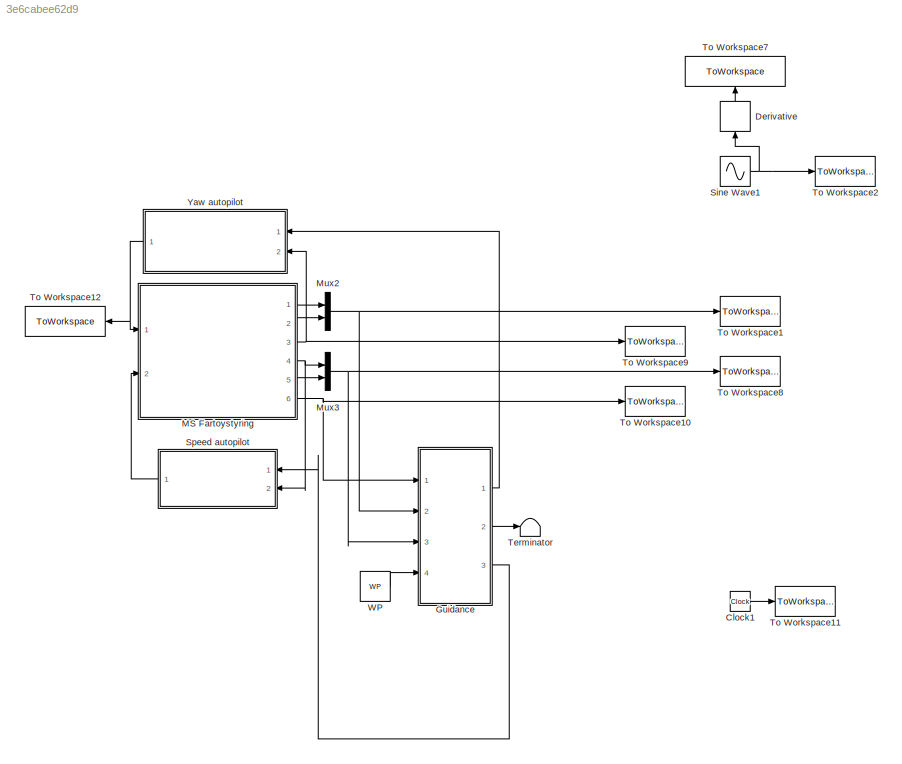
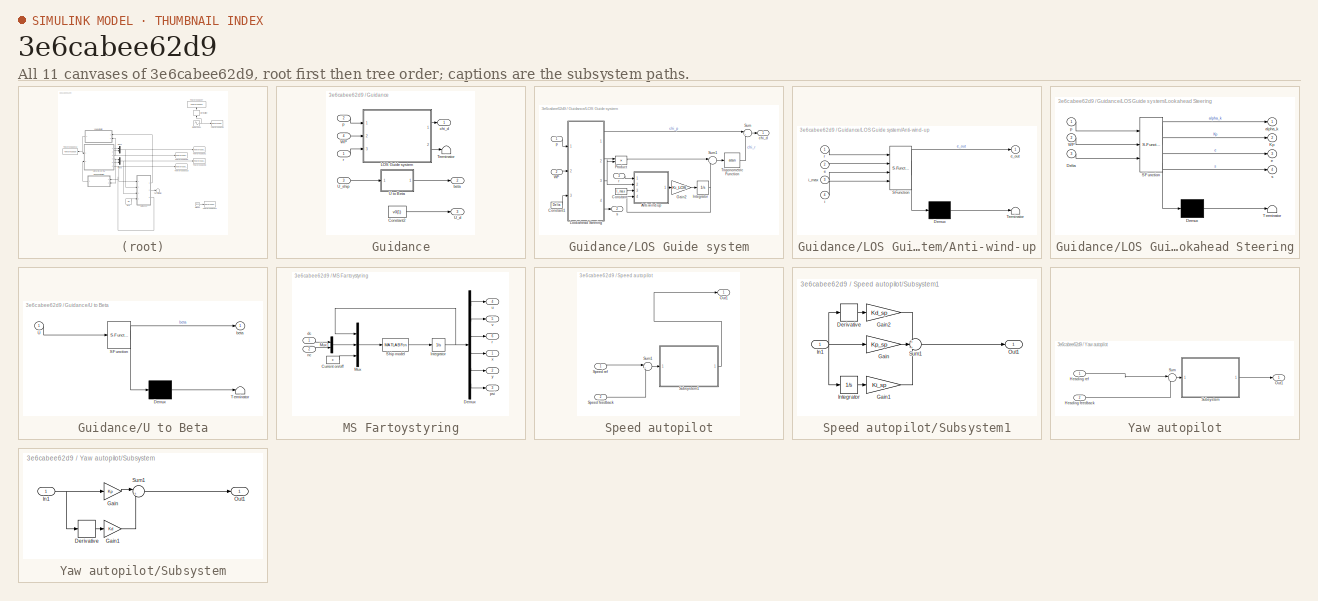
[diagram: thumbnail index - all 11 canvases of the model, root first then tree order]
MODEL slx_3e6cabee62d9
KIND model
CONFIG AbsTol = auto
CONFIG EnableMultiTasking = on
CONFIG FixedStep = auto
CONFIG MaxStep = auto
CONFIG MinStep = auto
CONFIG RelTol = 1e-3
CONFIG SampleTimeConstraint = Unconstrained
CONFIG Solver = ode45
CONFIG SolverName = ode45
CONFIG StartTime = tstart
CONFIG StopTime = tstop
BLOCK [Clock] Clock1
BLOCK [Derivative] Derivative
  Commented = on
BLOCK [SubSystem] Guidance
  Ports = [4, 3]
  RequestExecContextInheritance = off
BLOCK [Constant] Guidance/Constant2
  Value = v0(1)
BLOCK [SubSystem] Guidance/LOS Guide system
  Description = LOS
  Ports = [3, 2]
  RequestExecContextInheritance = off
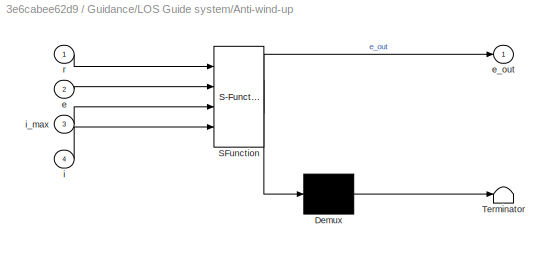
BLOCK [SubSystem] Guidance/LOS Guide system/Anti-wind-up
  ErrorFcn = Stateflow.Translate.translate
  PermitHierarchicalResolution = ExplicitOnly
  Ports = [4, 1]
  RequestExecContextInheritance = off
  SFBlockType = MATLAB Function
  TreatAsAtomicUnit = on
BLOCK [Demux] Guidance/LOS Guide system/Anti-wind-up/ Demux 
  Outputs = 1
  Ports = [1, 1]
BLOCK [S-Function] Guidance/LOS Guide system/Anti-wind-up/ SFunction 
  EnableBusSupport = on
  FunctionName = sf_sfun
  PortCounts = [4 2]
  Ports = [4, 2]
  SFcnIsStateOwnerBlock = off
  SFunctionDeploymentMode = off
  Tag = Stateflow S-Function MSFartoystyring_2_1 6
BLOCK [Terminator] Guidance/LOS Guide system/Anti-wind-up/ Terminator 
BLOCK [Inport] Guidance/LOS Guide system/Anti-wind-up/e
  IconDisplay = Port number
  Port = 2
BLOCK [Outport] Guidance/LOS Guide system/Anti-wind-up/e_out
  IconDisplay = Port number
BLOCK [Inport] Guidance/LOS Guide system/Anti-wind-up/i
  IconDisplay = Port number
  Port = 4
BLOCK [Inport] Guidance/LOS Guide system/Anti-wind-up/i_max
  IconDisplay = Port number
  Port = 3
BLOCK [Inport] Guidance/LOS Guide system/Anti-wind-up/r
  IconDisplay = Port number
BLOCK [Constant] Guidance/LOS Guide system/Constant
  Value = I_max
BLOCK [Constant] Guidance/LOS Guide system/Constant1
  Value = Delta
BLOCK [Gain] Guidance/LOS Guide system/Gain2
  Gain = Ki_LOS
  OutDataTypeStr = Inherit: Inherit via internal rule
  ParamDataTypeStr = Inherit: Inherit via internal rule
  SaturateOnIntegerOverflow = off
BLOCK [Integrator] Guidance/LOS Guide system/Integrator
  Ports = [1, 1]
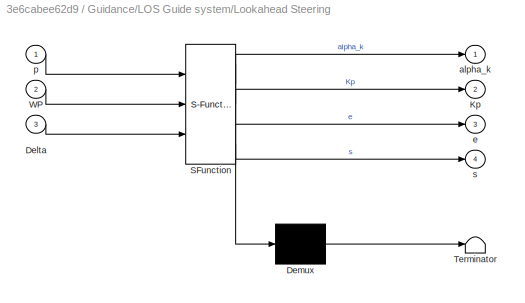
BLOCK [SubSystem] Guidance/LOS Guide system/Lookahead Steering
  ErrorFcn = Stateflow.Translate.translate
  PermitHierarchicalResolution = ExplicitOnly
  Ports = [3, 4]
  RequestExecContextInheritance = off
  SFBlockType = MATLAB Function
  TreatAsAtomicUnit = on
BLOCK [Demux] Guidance/LOS Guide system/Lookahead Steering/ Demux 
  Outputs = 1
  Ports = [1, 1]
BLOCK [S-Function] Guidance/LOS Guide system/Lookahead Steering/ SFunction 
  EnableBusSupport = on
  FunctionName = sf_sfun
  PortCounts = [3 5]
  Ports = [3, 5]
  SFcnIsStateOwnerBlock = off
  SFunctionDeploymentMode = off
  Tag = Stateflow S-Function MSFartoystyring_2_1 2
BLOCK [Terminator] Guidance/LOS Guide system/Lookahead Steering/ Terminator 
BLOCK [Inport] Guidance/LOS Guide system/Lookahead Steering/Delta
  IconDisplay = Port number
  Port = 3
BLOCK [Outport] Guidance/LOS Guide system/Lookahead Steering/Kp
  IconDisplay = Port number
  Port = 2
BLOCK [Inport] Guidance/LOS Guide system/Lookahead Steering/WP
  IconDisplay = Port number
  Port = 2
BLOCK [Outport] Guidance/LOS Guide system/Lookahead Steering/alpha_k
  IconDisplay = Port number
BLOCK [Outport] Guidance/LOS Guide system/Lookahead Steering/e
  IconDisplay = Port number
  Port = 3
BLOCK [Inport] Guidance/LOS Guide system/Lookahead Steering/p
  IconDisplay = Port number
BLOCK [Outport] Guidance/LOS Guide system/Lookahead Steering/s
  IconDisplay = Port number
  Port = 4
BLOCK [Product] Guidance/LOS Guide system/Product
  InputSameDT = off
  OutDataTypeStr = Inherit: Inherit via internal rule
  Ports = [2, 1]
  RndMeth = Floor
  SaturateOnIntegerOverflow = off
BLOCK [Sum] Guidance/LOS Guide system/Sum
  IconShape = round
  InputSameDT = off
  Inputs = |++
  OutDataTypeStr = Inherit: Inherit via internal rule
  Ports = [2, 1]
  SaturateOnIntegerOverflow = off
BLOCK [Sum] Guidance/LOS Guide system/Sum1
  IconShape = round
  InputSameDT = off
  Inputs = |--
  OutDataTypeStr = Inherit: Inherit via internal rule
  Ports = [2, 1]
  SaturateOnIntegerOverflow = off
BLOCK [Trigonometry] Guidance/LOS Guide system/Trigonometric Function
  Operator = atan
  Ports = [1, 1]
BLOCK [Inport] Guidance/LOS Guide system/WP
  IconDisplay = Port number
  Port = 2
BLOCK [Outport] Guidance/LOS Guide system/chi_d
  IconDisplay = Port number
BLOCK [Inport] Guidance/LOS Guide system/p
  IconDisplay = Port number
BLOCK [Inport] Guidance/LOS Guide system/r
  IconDisplay = Port number
  Port = 3
BLOCK [Outport] Guidance/LOS Guide system/s
  IconDisplay = Port number
  Port = 2
BLOCK [Terminator] Guidance/Terminator
BLOCK [SubSystem] Guidance/U to Beta
  ErrorFcn = Stateflow.Translate.translate
  PermitHierarchicalResolution = ExplicitOnly
  Ports = [1, 1]
  RequestExecContextInheritance = off
  SFBlockType = MATLAB Function
  TreatAsAtomicUnit = on
BLOCK [Demux] Guidance/U to Beta/ Demux 
  Outputs = 1
  Ports = [1, 1]
BLOCK [S-Function] Guidance/U to Beta/ SFunction 
  EnableBusSupport = on
  FunctionName = sf_sfun
  PortCounts = [1 2]
  Ports = [1, 2]
  SFcnIsStateOwnerBlock = off
  SFunctionDeploymentMode = off
  Tag = Stateflow S-Function MSFartoystyring_2_1 3
BLOCK [Terminator] Guidance/U to Beta/ Terminator 
BLOCK [Inport] Guidance/U to Beta/U
  IconDisplay = Port number
BLOCK [Outport] Guidance/U to Beta/beta
  IconDisplay = Port number
BLOCK [Outport] Guidance/U_d
  IconDisplay = Port number
  Port = 3
BLOCK [Inport] Guidance/U_ship
  IconDisplay = Port number
  Port = 3
BLOCK [Inport] Guidance/WP
  IconDisplay = Port number
  Port = 4
BLOCK [Outport] Guidance/beta
  IconDisplay = Port number
  Port = 2
BLOCK [Outport] Guidance/chi_d
  IconDisplay = Port number
BLOCK [Inport] Guidance/p
  IconDisplay = Port number
  Port = 2
BLOCK [Inport] Guidance/r
  IconDisplay = Port number
BLOCK [SubSystem] MS Fartoystyring
  Ports = [2, 6]
  RequestExecContextInheritance = off
BLOCK [Constant] MS Fartoystyring/Current on//off
  Value = c
BLOCK [Demux] MS Fartoystyring/Demux
  DisplayOption = bar
  Outputs = 6
  Ports = [1, 6]
BLOCK [Integrator] MS Fartoystyring/Integrator
  InitialCondition = [u0 v0 r0 x0 y0 psi0]'
  Ports = [1, 1]
BLOCK [Mux] MS Fartoystyring/Mux
  DisplayOption = bar
  Inputs = 3
  Ports = [3, 1]
BLOCK [Mux] MS Fartoystyring/Mux1
  DisplayOption = bar
  Inputs = 2
  Ports = [2, 1]
BLOCK [MATLABFcn] MS Fartoystyring/Ship model
  MATLABFcn = msfartoystyring(u(1:6), u(7:8), u(9))
  OutputDimensions = 6
  Ports = [1, 1]
BLOCK [Inport] MS Fartoystyring/dc
  IconDisplay = Port number
BLOCK [Inport] MS Fartoystyring/nc
  IconDisplay = Port number
  Port = 2
BLOCK [Outport] MS Fartoystyring/psi
  IconDisplay = Port number
  Port = 3
BLOCK [Outport] MS Fartoystyring/r
  IconDisplay = Port number
  Port = 6
BLOCK [Outport] MS Fartoystyring/u
  IconDisplay = Port number
  Port = 4
BLOCK [Outport] MS Fartoystyring/v
  IconDisplay = Port number
  Port = 5
BLOCK [Outport] MS Fartoystyring/x
  IconDisplay = Port number
BLOCK [Outport] MS Fartoystyring/y
  IconDisplay = Port number
  Port = 2
BLOCK [Mux] Mux2
  DisplayOption = bar
  Inputs = 2
  Ports = [2, 1]
BLOCK [Mux] Mux3
  DisplayOption = bar
  Inputs = 2
  Ports = [2, 1]
BLOCK [Sin] Sine Wave1
  Amplitude = 0.4
  Commented = on
  Frequency = 0.004
  Ports = [0, 1]
  SampleTime = 0
BLOCK [SubSystem] Speed autopilot
  Ports = [2, 1]
  RequestExecContextInheritance = off
BLOCK [Outport] Speed autopilot/Out1
  IconDisplay = Port number
BLOCK [Inport] Speed autopilot/Speed feedback
  IconDisplay = Port number
  Port = 2
BLOCK [Inport] Speed autopilot/Speed ref
  IconDisplay = Port number
BLOCK [SubSystem] Speed autopilot/Subsystem1
  Ports = [1, 1]
  RequestExecContextInheritance = off
BLOCK [Derivative] Speed autopilot/Subsystem1/Derivative
BLOCK [Gain] Speed autopilot/Subsystem1/Gain
  Gain = Kp_sp
  OutDataTypeStr = Inherit: Inherit via internal rule
  ParamDataTypeStr = Inherit: Inherit via internal rule
  SaturateOnIntegerOverflow = off
BLOCK [Gain] Speed autopilot/Subsystem1/Gain1
  Gain = Ki_sp
  OutDataTypeStr = Inherit: Inherit via internal rule
  ParamDataTypeStr = Inherit: Inherit via internal rule
  SaturateOnIntegerOverflow = off
BLOCK [Gain] Speed autopilot/Subsystem1/Gain2
  Gain = Kd_sp
  OutDataTypeStr = Inherit: Inherit via internal rule
  ParamDataTypeStr = Inherit: Inherit via internal rule
  SaturateOnIntegerOverflow = off
BLOCK [Inport] Speed autopilot/Subsystem1/In1
  IconDisplay = Port number
BLOCK [Integrator] Speed autopilot/Subsystem1/Integrator
  Ports = [1, 1]
BLOCK [Outport] Speed autopilot/Subsystem1/Out1
  IconDisplay = Port number
BLOCK [Sum] Speed autopilot/Subsystem1/Sum1
  IconShape = round
  InputSameDT = off
  Inputs = +|++
  OutDataTypeStr = Inherit: Inherit via internal rule
  Ports = [3, 1]
  SaturateOnIntegerOverflow = off
BLOCK [Sum] Speed autopilot/Sum1
  IconShape = round
  InputSameDT = off
  Inputs = |+-
  OutDataTypeStr = Inherit: Inherit via internal rule
  Ports = [2, 1]
  SaturateOnIntegerOverflow = off
BLOCK [Terminator] Terminator
BLOCK [ToWorkspace] To Workspace1
  MaxDataPoints = inf
  Ports = [1]
  SampleTime = tsamp
  VariableName = p
BLOCK [ToWorkspace] To Workspace10
  MaxDataPoints = inf
  Ports = [1]
  SampleTime = tsamp
  VariableName = r
BLOCK [ToWorkspace] To Workspace11
  MaxDataPoints = inf
  Ports = [1]
  SampleTime = tsamp
  VariableName = t
BLOCK [ToWorkspace] To Workspace12
  MaxDataPoints = inf
  Ports = [1]
  SampleTime = tsamp
  VariableName = rudder_input
BLOCK [ToWorkspace] To Workspace2
  Commented = on
  MaxDataPoints = inf
  Ports = [1]
  SampleTime = tsamp
  VariableName = yaw_ref
BLOCK [ToWorkspace] To Workspace7
  Commented = on
  MaxDataPoints = inf
  Ports = [1]
  SampleTime = tsamp
  VariableName = yaw_rate_ref
BLOCK [ToWorkspace] To Workspace8
  MaxDataPoints = inf
  Ports = [1]
  SampleTime = tsamp
  VariableName = v
BLOCK [ToWorkspace] To Workspace9
  MaxDataPoints = inf
  Ports = [1]
  SampleTime = tsamp
  VariableName = psi
BLOCK [Constant] WP
  Value = WP
BLOCK [SubSystem] Yaw autopilot
  Ports = [2, 1]
  RequestExecContextInheritance = off
BLOCK [Inport] Yaw autopilot/Heading feedback
  IconDisplay = Port number
  Port = 2
BLOCK [Inport] Yaw autopilot/Heading ref
  IconDisplay = Port number
BLOCK [Outport] Yaw autopilot/Out1
  IconDisplay = Port number
BLOCK [SubSystem] Yaw autopilot/Subsystem
  Ports = [1, 1]
  RequestExecContextInheritance = off
BLOCK [Derivative] Yaw autopilot/Subsystem/Derivative
BLOCK [Gain] Yaw autopilot/Subsystem/Gain
  Gain = Kp
  OutDataTypeStr = Inherit: Inherit via internal rule
  ParamDataTypeStr = Inherit: Inherit via internal rule
  SaturateOnIntegerOverflow = off
BLOCK [Gain] Yaw autopilot/Subsystem/Gain1
  Gain = Kd
  OutDataTypeStr = Inherit: Inherit via internal rule
  ParamDataTypeStr = Inherit: Inherit via internal rule
  SaturateOnIntegerOverflow = off
BLOCK [Inport] Yaw autopilot/Subsystem/In1
  IconDisplay = Port number
BLOCK [Outport] Yaw autopilot/Subsystem/Out1
  IconDisplay = Port number
BLOCK [Sum] Yaw autopilot/Subsystem/Sum1
  IconShape = round
  InputSameDT = off
  Inputs = |++
  OutDataTypeStr = Inherit: Inherit via internal rule
  Ports = [2, 1]
  SaturateOnIntegerOverflow = off
BLOCK [Sum] Yaw autopilot/Sum
  IconShape = round
  InputSameDT = off
  Inputs = |++
  OutDataTypeStr = Inherit: Inherit via internal rule
  Ports = [2, 1]
  SaturateOnIntegerOverflow = off
LINE Clock1:1 -> To Workspace11:1
LINE Derivative:1 -> To Workspace7:1
LINE Guidance/Constant2:1 -> Guidance/U_d:1
LINE Guidance/LOS Guide system/Anti-wind-up:1 -> Guidance/LOS Guide system/Gain2:1
LINE Guidance/LOS Guide system/Constant1:1 -> Guidance/LOS Guide system/Lookahead Steering:3
LINE Guidance/LOS Guide system/Constant:1 -> Guidance/LOS Guide system/Anti-wind-up:3
LINE Guidance/LOS Guide system/Gain2:1 -> Guidance/LOS Guide system/Integrator:1
NET Guidance/LOS Guide system/Integrator:1 -> Guidance/LOS Guide system/Anti-wind-up:4, Guidance/LOS Guide system/Sum1:2
LINE Guidance/LOS Guide system/Lookahead Steering:1 -> Guidance/LOS Guide system/Sum:1
LINE Guidance/LOS Guide system/Lookahead Steering:2 -> Guidance/LOS Guide system/Product:1
NET Guidance/LOS Guide system/Lookahead Steering:3 -> Guidance/LOS Guide system/Anti-wind-up:2, Guidance/LOS Guide system/Product:2
LINE Guidance/LOS Guide system/Lookahead Steering:4 -> Guidance/LOS Guide system/s:1
LINE Guidance/LOS Guide system/Product:1 -> Guidance/LOS Guide system/Sum1:1
LINE Guidance/LOS Guide system/Sum1:1 -> Guidance/LOS Guide system/Trigonometric Function:1
LINE Guidance/LOS Guide system/Sum:1 -> Guidance/LOS Guide system/chi_d:1
LINE Guidance/LOS Guide system/Trigonometric Function:1 -> Guidance/LOS Guide system/Sum:2
LINE Guidance/LOS Guide system/WP:1 -> Guidance/LOS Guide system/Lookahead Steering:2
LINE Guidance/LOS Guide system/p:1 -> Guidance/LOS Guide system/Lookahead Steering:1
LINE Guidance/LOS Guide system/r:1 -> Guidance/LOS Guide system/Anti-wind-up:1
LINE Guidance/LOS Guide system:1 -> Guidance/chi_d:1
LINE Guidance/LOS Guide system:2 -> Guidance/Terminator:1
LINE Guidance/U to Beta:1 -> Guidance/beta:1
LINE Guidance/U_ship:1 -> Guidance/U to Beta:1
LINE Guidance/WP:1 -> Guidance/LOS Guide system:2
LINE Guidance/p:1 -> Guidance/LOS Guide system:1
LINE Guidance/r:1 -> Guidance/LOS Guide system:3
LINE Guidance:1 -> Yaw autopilot:1
LINE Guidance:2 -> Terminator:1
LINE Guidance:3 -> Speed autopilot:1
LINE MS Fartoystyring/Current on//off:1 -> MS Fartoystyring/Mux:3
LINE MS Fartoystyring/Demux:1 -> MS Fartoystyring/u:1
LINE MS Fartoystyring/Demux:2 -> MS Fartoystyring/v:1
LINE MS Fartoystyring/Demux:3 -> MS Fartoystyring/r:1
LINE MS Fartoystyring/Demux:4 -> MS Fartoystyring/x:1
LINE MS Fartoystyring/Demux:5 -> MS Fartoystyring/y:1
LINE MS Fartoystyring/Demux:6 -> MS Fartoystyring/psi:1
NET MS Fartoystyring/Integrator:1 -> MS Fartoystyring/Demux:1, MS Fartoystyring/Mux:1
LINE MS Fartoystyring/Mux1:1 -> MS Fartoystyring/Mux:2
LINE MS Fartoystyring/Mux:1 -> MS Fartoystyring/Ship model:1
LINE MS Fartoystyring/Ship model:1 -> MS Fartoystyring/Integrator:1
LINE MS Fartoystyring/dc:1 -> MS Fartoystyring/Mux1:1
LINE MS Fartoystyring/nc:1 -> MS Fartoystyring/Mux1:2
LINE MS Fartoystyring:1 -> Mux2:1
LINE MS Fartoystyring:2 -> Mux2:2
NET MS Fartoystyring:3 -> To Workspace9:1, Yaw autopilot:2
NET MS Fartoystyring:4 -> Mux3:1, Speed autopilot:2
LINE MS Fartoystyring:5 -> Mux3:2
NET MS Fartoystyring:6 -> Guidance:1, To Workspace10:1
NET Mux2:1 -> Guidance:2, To Workspace1:1
NET Mux3:1 -> Guidance:3, To Workspace8:1
NET Sine Wave1:1 -> Derivative:1, To Workspace2:1
LINE Speed autopilot/Speed feedback:1 -> Speed autopilot/Sum1:2
LINE Speed autopilot/Speed ref:1 -> Speed autopilot/Sum1:1
LINE Speed autopilot/Subsystem1/Derivative:1 -> Speed autopilot/Subsystem1/Gain2:1
LINE Speed autopilot/Subsystem1/Gain1:1 -> Speed autopilot/Subsystem1/Sum1:3
LINE Speed autopilot/Subsystem1/Gain2:1 -> Speed autopilot/Subsystem1/Sum1:1
LINE Speed autopilot/Subsystem1/Gain:1 -> Speed autopilot/Subsystem1/Sum1:2
NET Speed autopilot/Subsystem1/In1:1 -> Speed autopilot/Subsystem1/Derivative:1, Speed autopilot/Subsystem1/Gain:1, Speed autopilot/Subsystem1/Integrator:1
LINE Speed autopilot/Subsystem1/Integrator:1 -> Speed autopilot/Subsystem1/Gain1:1
LINE Speed autopilot/Subsystem1/Sum1:1 -> Speed autopilot/Subsystem1/Out1:1
LINE Speed autopilot/Subsystem1:1 -> Speed autopilot/Out1:1
LINE Speed autopilot/Sum1:1 -> Speed autopilot/Subsystem1:1
LINE Speed autopilot:1 -> MS Fartoystyring:2
LINE WP:1 -> Guidance:4
LINE Yaw autopilot/Heading feedback:1 -> Yaw autopilot/Sum:2
LINE Yaw autopilot/Heading ref:1 -> Yaw autopilot/Sum:1
LINE Yaw autopilot/Subsystem/Derivative:1 -> Yaw autopilot/Subsystem/Gain1:1
LINE Yaw autopilot/Subsystem/Gain1:1 -> Yaw autopilot/Subsystem/Sum1:2
LINE Yaw autopilot/Subsystem/Gain:1 -> Yaw autopilot/Subsystem/Sum1:1
NET Yaw autopilot/Subsystem/In1:1 -> Yaw autopilot/Subsystem/Derivative:1, Yaw autopilot/Subsystem/Gain:1
LINE Yaw autopilot/Subsystem/Sum1:1 -> Yaw autopilot/Subsystem/Out1:1
LINE Yaw autopilot/Subsystem:1 -> Yaw autopilot/Out1:1
LINE Yaw autopilot/Sum:1 -> Yaw autopilot/Subsystem:1
NET Yaw autopilot:1 -> MS Fartoystyring:1, To Workspace12:1
note: NET lines group one-source signal fan-out (src -> all destinations, sorted); 1:1 wires keep LINE
CHART Guidance/LOS Guide system/Lookahead Steering states=1 transitions=1
  STATE_LABEL 'eML_blk_kernel()'
  STATE_LABEL "SCRIPT:\nfunction [alpha_k, Kp, e, s] = fcn(p, WP, Delta)\n    persistent index;\n\n    if isempty(index)\n         index = 2;\n    end\n    % The craft's position in NED\n    x = p(1);   %[m] \n    y = p(2);   %[m]    \n\n    % The next and previous waypoint in NED\n    xk = WP(1, index - 1);                  xk_1 = WP(1, index); \n    yk = WP(2, index - 1);                  yk_1 = WP(2, index);\n\n    % How fa...<+837ch>"
CHART Guidance/U to Beta states=1 transitions=1
  STATE_LABEL 'eML_blk_kernel()'
  STATE_LABEL 'SCRIPT:\nfunction beta = fcn(U)\nu = U(1);\nv = U(2);\nbeta = asin(v/sqrt(u^2 +v^2));\nend'
CHART Guidance/LOS Guide system/Anti-wind-up states=1 transitions=1
  STATE_LABEL 'eML_blk_kernel()'
  STATE_LABEL 'SCRIPT:\nfunction e_out = fcn(r,e,i_max, i)\nif (abs(r) > 0.003) || (abs(e) > 200)\n    e_out = 0;\nelseif (i > i_max && e>0) || (i < -i_max && e<0)\n    e_out = e/(5+4*abs(i)/i_max);\nelse\n    e_out = e;\nend\nend'
